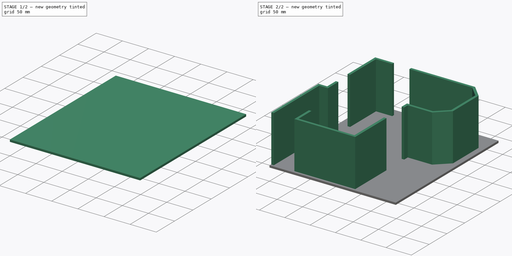
[diagram: build sequence overview — one tinted view per stage of 2, left to right]
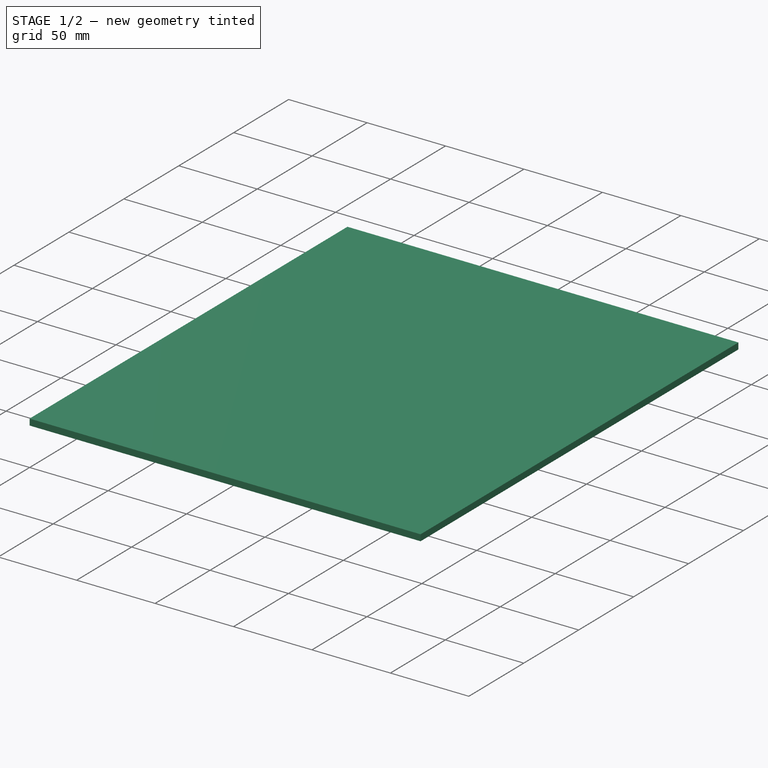
[diagram: stage 1 of 2 — iso view after this stage's code; geometry added in this stage tinted green]
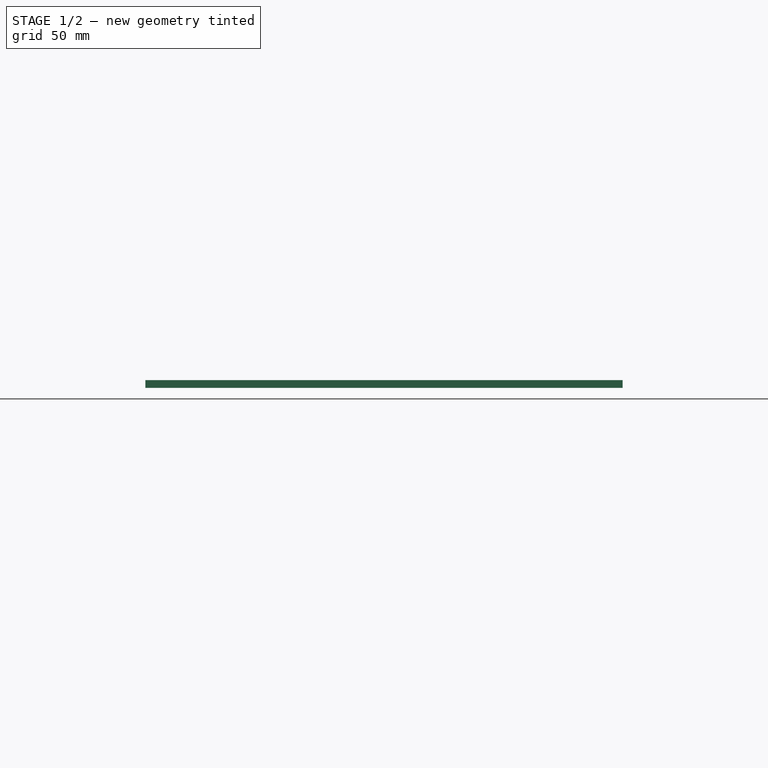
[diagram: stage 1 of 2 — front view after this stage's code; geometry added in this stage tinted green]
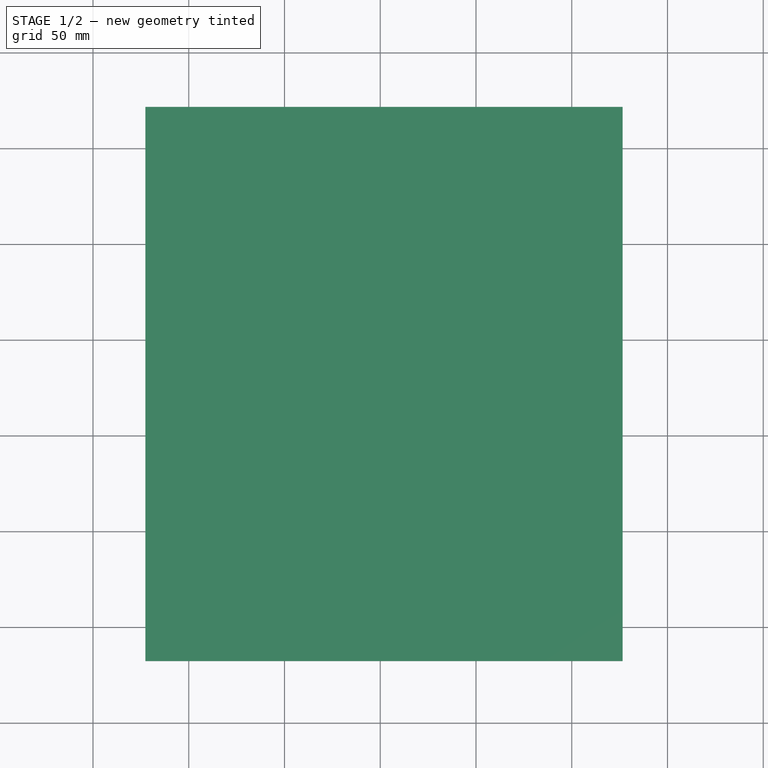
[diagram: stage 1 of 2 — top view after this stage's code; geometry added in this stage tinted green]
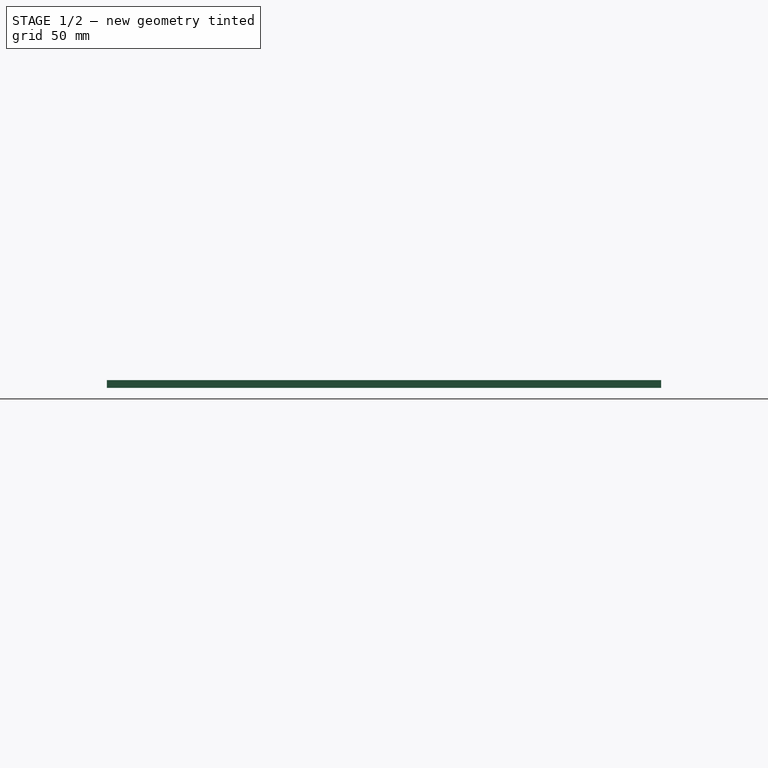
[diagram: stage 1 of 2 — right view after this stage's code; geometry added in this stage tinted green]
FCSTD DOCUMENT  (FreeCAD 0.19R)
Label: NewKitchen1
License: All rights reserved
LicenseURL: http://en.wikipedia.org/wiki/All_rights_reserved
objects: Sketcher::SketchObject×9, PartDesign::Pad×2, PartDesign::Body×1
note: 14 computed .brp shape members not serialized (recipe doc carries the construction recipe); baked Part::Feature solids carry a one-line shape summary decoded from their .brp

FEATURE [Sketcher::SketchObject] Sketch001
  FullyConstrained = false
  MapMode = 5
  Support = -> [XY_Plane]
  sketch-geometry (4):
    g0: LineSegment StartX=-22.6645 StartY=21.6991 StartZ=0 EndX=226.571 EndY=21.6991 EndZ=0
    g1: LineSegment StartX=226.571 StartY=21.6991 StartZ=0 EndX=226.571 EndY=-267.668 EndZ=0
    g2: LineSegment StartX=226.571 StartY=-267.668 StartZ=0 EndX=-22.6645 EndY=-267.668 EndZ=0
    g3: LineSegment StartX=-22.6645 StartY=-267.668 StartZ=0 EndX=-22.6645 EndY=21.6991 EndZ=0
  constraints (8):
    c: Coincident(g0,g1)
    c: Coincident(g1,g2)
    c: Coincident(g2,g3)
    c: Coincident(g3,g0)
    c: Horizontal(g0)
    c: Horizontal(g2)
    c: Vertical(g1)
    c: Vertical(g3)
FEATURE [PartDesign::Pad] Pad  label="base"
  Direction = (1,1,1)
  Length = 4
  Length2 = 100
  Profile = -> Sketch001
  Type = 0
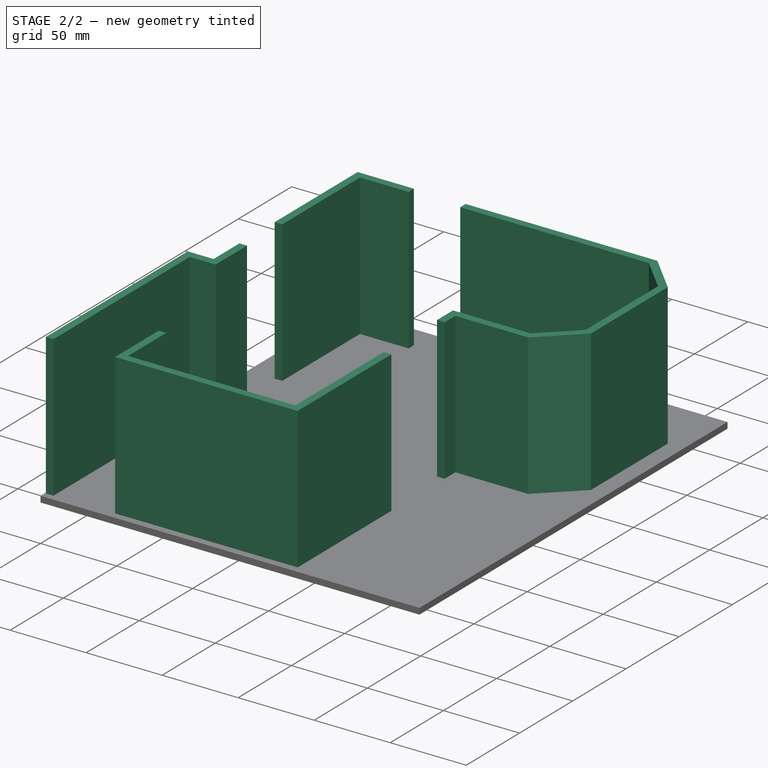
[diagram: stage 2 of 2 — iso view after this stage's code; geometry added in this stage tinted green]
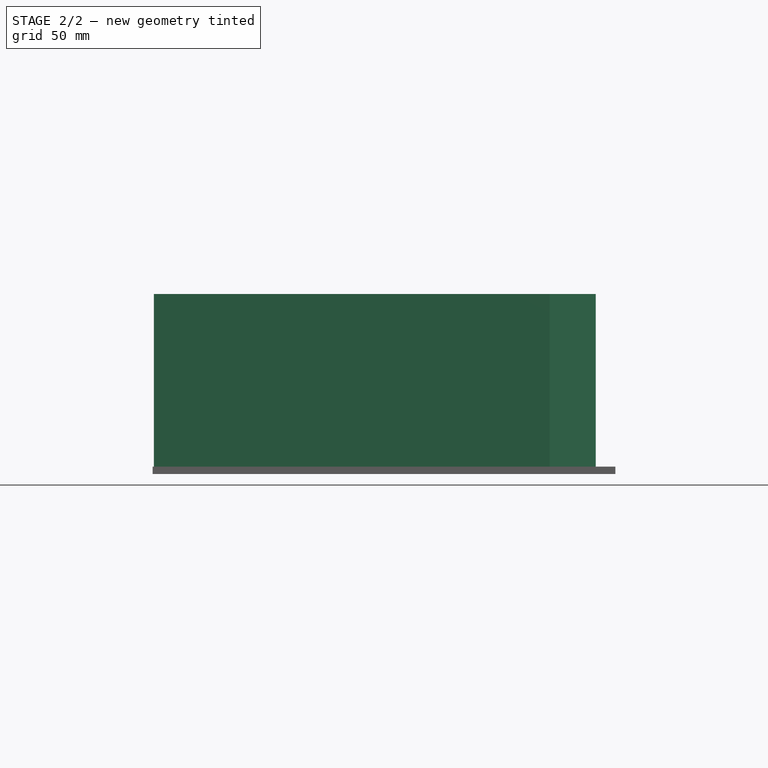
[diagram: stage 2 of 2 — front view after this stage's code; geometry added in this stage tinted green]
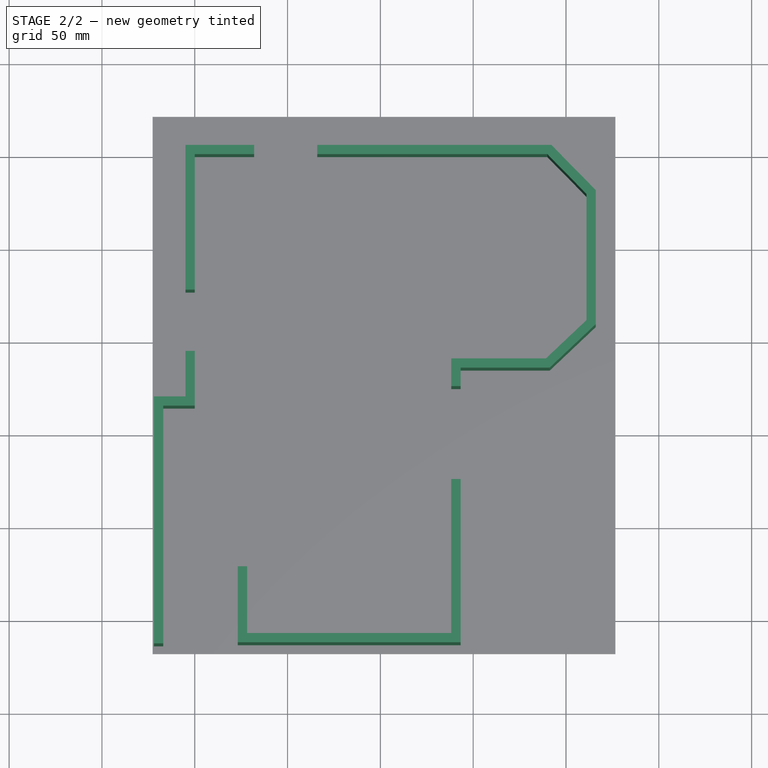
[diagram: stage 2 of 2 — top view after this stage's code; geometry added in this stage tinted green]
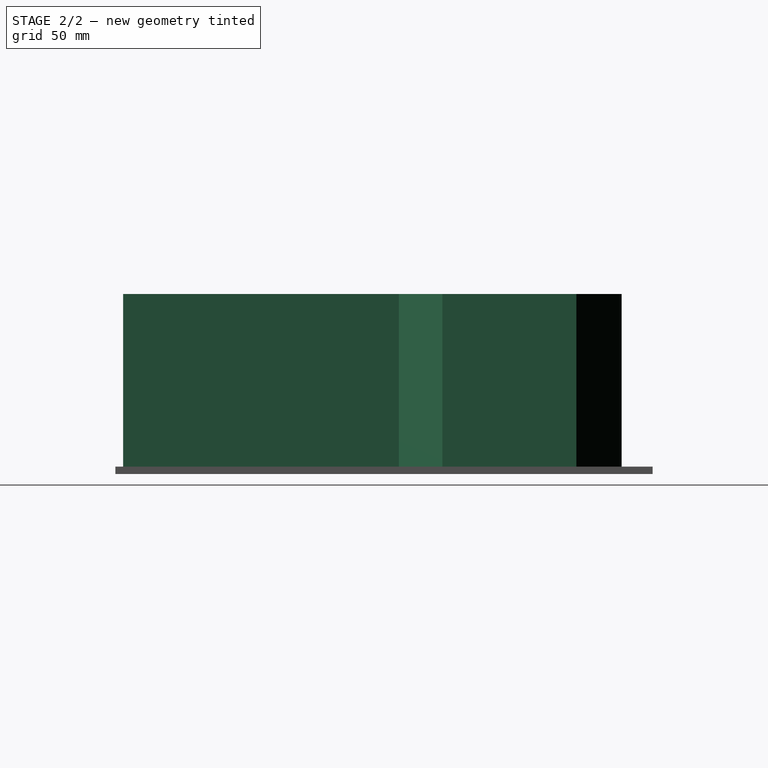
[diagram: stage 2 of 2 — right view after this stage's code; geometry added in this stage tinted green]
FEATURE [Sketcher::SketchObject] Sketch
  FullyConstrained = false
  MapMode = 5
  Placement = pos=(0,0,4) rot=(0,0,1;0rad)
  Support = -> [Pad]
  sketch-geometry (32):
    g0: LineSegment StartX=-17 StartY=-135.5 StartZ=0 EndX=0 EndY=-135.5 EndZ=0
    g1: LineSegment StartX=-0.126742 StartY=-0.000107246 StartZ=0 EndX=32 EndY=0 EndZ=0
    g2: LineSegment StartX=32 StartY=0 StartZ=0 EndX=32 EndY=5.12674 EndZ=0
    g3: LineSegment StartX=32 StartY=5.12674 StartZ=0 EndX=-5.12674 EndY=5.12674 EndZ=0
    g4: LineSegment StartX=-5.12674 StartY=-130.5 StartZ=0 EndX=-22 EndY=-130.5 EndZ=0
    g5: LineSegment StartX=66 StartY=5.0226 StartZ=0 EndX=66 EndY=-0.104143 EndZ=0
    g6: LineSegment StartX=66 StartY=0 StartZ=0 EndX=190 EndY=0 EndZ=0
    g7: LineSegment StartX=189.989 StartY=0.0169644 StartZ=0 EndX=211.022 EndY=-21.401 EndZ=0
    g8: LineSegment StartX=211.023 StartY=-21.4012 StartZ=0 EndX=211.024 EndY=-89.4012 EndZ=0
    g9: LineSegment StartX=211.024 StartY=-89.4012 StartZ=0 EndX=189.213 EndY=-110 EndZ=0
    g10: LineSegment StartX=189.213 StartY=-110 StartZ=0 EndX=138.834 EndY=-110 EndZ=0
    g11: LineSegment StartX=138.834 StartY=-258 StartZ=0 EndX=28.8337 EndY=-258 EndZ=0
    g12: LineSegment StartX=28.8337 StartY=-258 StartZ=0 EndX=28.8337 EndY=-222 EndZ=0
    g13: LineSegment StartX=28.8337 StartY=-222 StartZ=0 EndX=23.707 EndY=-222 EndZ=0
    g14: LineSegment StartX=23.707 StartY=-222 StartZ=0 EndX=23.707 EndY=-263 EndZ=0
    g15: LineSegment StartX=23.707 StartY=-263 StartZ=0 EndX=142.164 EndY=-263 EndZ=0
    g16: LineSegment StartX=142.164 StartY=-115 StartZ=0 EndX=191.201 EndY=-115 EndZ=0
    g17: LineSegment StartX=191.201 StartY=-115 StartZ=0 EndX=216.024 EndY=-91.5564 EndZ=0
    g18: LineSegment StartX=216.024 StartY=-91.5564 StartZ=0 EndX=216.023 EndY=-19.3574 EndZ=0
    g19: LineSegment StartX=216.023 StartY=-19.3574 StartZ=0 EndX=192.081 EndY=5.0226 EndZ=0
    g20: LineSegment StartX=192.081 StartY=5.0226 StartZ=0 EndX=66 EndY=5.0226 EndZ=0
    g21: LineSegment StartX=-5.12674 StartY=-130.5 StartZ=0 EndX=-5.12674 EndY=-106 EndZ=0
    g22: LineSegment StartX=-5.12674 StartY=-106 StartZ=0 EndX=0 EndY=-106 EndZ=0
    g23: LineSegment StartX=0 StartY=-106 StartZ=0 EndX=0 EndY=-135.5 EndZ=0
    g24: LineSegment StartX=-5.12674 StartY=5.12674 StartZ=0 EndX=-5.12674 EndY=-73 EndZ=0
    g25: LineSegment StartX=-5.12674 StartY=-73 StartZ=0 EndX=0 EndY=-73 EndZ=0
    g26: LineSegment StartX=0 StartY=-73 StartZ=0 EndX=-0.126742 EndY=-0.000107246 EndZ=0
    g27: LineSegment StartX=138.834 StartY=-110 StartZ=0 EndX=138.834 EndY=-258 EndZ=0
    g28: LineSegment StartX=142.164 StartY=-115 StartZ=0 EndX=142.164 EndY=-263 EndZ=0
    g29: LineSegment StartX=-17 StartY=-135.5 StartZ=0 EndX=-17 EndY=-263.55 EndZ=0
    g30: LineSegment StartX=-17 StartY=-263.55 StartZ=0 EndX=-22 EndY=-263.55 EndZ=0
    g31: LineSegment StartX=-22 StartY=-263.55 StartZ=0 EndX=-22 EndY=-130.5 EndZ=0
  constraints (77):
    c: PointOnObject(g0,g-2)
    c: Horizontal(g0)
    c: PointOnObject(g1,g-1)
    c: Coincident(g1,g2)
    c: Coincident(g2,g3)
    c: Horizontal(g3)
    c: Horizontal(g6)
    c: Horizontal(g11)
    c: Coincident(g11,g12)
    c: Vertical(g12)
    c: Coincident(g12,g13)
    c: Coincident(g13,g14)
    c: Vertical(g14)
    c: Coincident(g14,g15)
    c: Coincident(g16,g17)
    c: Coincident(g17,g18)
    c: Coincident(g18,g19)
    c: Coincident(g19,g20)
    c: Coincident(g20,g5)
    c: Horizontal(g20)
    c: Equal(g2,g5)
    c: Equal(g5,g13)
    c: Horizontal(g4)
    c: Horizontal(g13)
    c: Coincident(g4,g21)
    c: Vertical(g21)
    c: Coincident(g21,g22)
    c: PointOnObject(g22,g-2)
    c: Coincident(g22,g23)
    c: Coincident(g23,g0)
    c: Coincident(g3,g24)
    c: Vertical(g24)
    c: Coincident(g24,g25)
    c: PointOnObject(g25,g-2)
    c: Coincident(g25,g26)
    c: Coincident(g26,g1)
    c: Horizontal(g22)
    c: Horizontal(g25)
    c: Equal(g25,g22)
    c: Equal(g22,g13)
    c: Distance(g23) = 29.5
    c: Distance(g22,g25) = 33
    c: Distance(g26) = 73
    c: Vertical(g2)
    c: Vertical(g5)
    c: Parallel(g19,g7)
    c: Parallel(g9,g17)
    c: Parallel(g18,g8)
    c: Parallel(g16,g10)
    c: Distance(g16,g10) = 5
    c: Distance(g17,g8) = 5
    c: Distance(g7,g19) = 5
    c: Distance(g16,g9) = 5
    c: Parallel(g15,g11)
    c: Coincident(g27,g11)
    c: Vertical(g27)
    c: Coincident(g15,g28)
    c: Parallel(g28,g27)
    c: Distance(g15,g11) = 5
    c: Distance(g11) = 110
    c: Distance(g12) = 36
    c: Coincident(g0,g29)
    c: Vertical(g29)
    c: Coincident(g29,g30)
    c: Coincident(g30,g31)
    c: Vertical(g31)
    c: Coincident(g4,g31)
    c: Distance(g0,g31) = 5
    c: Distance(g0) = 17
    c: Horizontal(g30)
    c: Distance(g29) = 128.05
    c: Distance(g4,g0) = 5
    c: Distance(g1,g24) = 5
    c: DistanceY(g15) = -263
    c: Coincident(g28,g16)
    c: Coincident(g27,g10)
    c: Distance(g16,g27) = 3.33
FEATURE [Sketcher::SketchObject] Sketch003
  FullyConstrained = false
  MapMode = 5
  Placement = pos=(0,0,4) rot=(0,0,1;0rad)
  sketch-geometry (4):
    g0: LineSegment StartX=0.17585 StartY=-18.4157 StartZ=0 EndX=36.1758 EndY=-18.4157 EndZ=0
    g1: LineSegment StartX=36.1758 StartY=-18.4157 StartZ=0 EndX=36.1758 EndY=-54.4157 EndZ=0
    g2: LineSegment StartX=36.1758 StartY=-54.4157 StartZ=0 EndX=0.17585 EndY=-54.4157 EndZ=0
    g3: LineSegment StartX=0.17585 StartY=-54.4157 StartZ=0 EndX=0.17585 EndY=-18.4157 EndZ=0
  constraints (10):
    c: Coincident(g0,g1)
    c: Coincident(g1,g2)
    c: Coincident(g2,g3)
    c: Coincident(g3,g0)
    c: Horizontal(g0)
    c: Horizontal(g2)
    c: Vertical(g1)
    c: Vertical(g3)
    c: Equal(g0,g3)
    c: Distance(g1) = 36
FEATURE [Sketcher::SketchObject] Sketch010
  FullyConstrained = false
  MapMode = 5
  Placement = pos=(0,0,40) rot=(0,0,1;0rad)
  sketch-geometry (8):
    g0: LineSegment StartX=137.275 StartY=-2.22237 StartZ=0 EndX=167.275 EndY=-2.22237 EndZ=0
    g1: LineSegment StartX=167.275 StartY=-2.22237 StartZ=0 EndX=167.275 EndY=-24.2224 EndZ=0
    g2: LineSegment StartX=167.275 StartY=-24.2224 StartZ=0 EndX=137.275 EndY=-24.2224 EndZ=0
    g3: LineSegment StartX=137.275 StartY=-24.2224 StartZ=0 EndX=137.275 EndY=-2.22237 EndZ=0
    g4: LineSegment StartX=187.92 StartY=-44.1819 StartZ=0 EndX=207.92 EndY=-44.1819 EndZ=0
    g5: LineSegment StartX=207.92 StartY=-44.1819 StartZ=0 EndX=207.92 EndY=-68.1819 EndZ=0
    g6: LineSegment StartX=207.92 StartY=-68.1819 StartZ=0 EndX=187.92 EndY=-68.1819 EndZ=0
    g7: LineSegment StartX=187.92 StartY=-68.1819 StartZ=0 EndX=187.92 EndY=-44.1819 EndZ=0
  constraints (20):
    c: Coincident(g0,g1)
    c: Coincident(g1,g2)
    c: Coincident(g2,g3)
    c: Coincident(g3,g0)
    c: Horizontal(g0)
    c: Horizontal(g2)
    c: Vertical(g1)
    c: Vertical(g3)
    c: Distance(g2) = 30
    c: Distance(g1) = 22
    c: Coincident(g4,g5)
    c: Coincident(g5,g6)
    c: Coincident(g6,g7)
    c: Coincident(g7,g4)
    c: Horizontal(g4)
    c: Horizontal(g6)
    c: Vertical(g5)
    c: Vertical(g7)
    c: Distance(g7) = 24
    c: Distance(g4) = 20
FEATURE [Sketcher::SketchObject] Sketch016
  FullyConstrained = false
  MapMode = 5
  Placement = pos=(0,0,4) rot=(0,0,1;0rad)
  sketch-geometry (4):
    g0: LineSegment StartX=60.2133 StartY=-84 StartZ=0 EndX=98.2133 EndY=-84 EndZ=0
    g1: LineSegment StartX=98.2133 StartY=-84 StartZ=0 EndX=98.2133 EndY=-156 EndZ=0
    g2: LineSegment StartX=98.2133 StartY=-156 StartZ=0 EndX=60.2133 EndY=-156 EndZ=0
    g3: LineSegment StartX=60.2133 StartY=-156 StartZ=0 EndX=60.2133 EndY=-84 EndZ=0
  constraints (10):
    c: Coincident(g0,g1)
    c: Coincident(g1,g2)
    c: Coincident(g2,g3)
    c: Coincident(g3,g0)
    c: Horizontal(g0)
    c: Horizontal(g2)
    c: Vertical(g1)
    c: Vertical(g3)
    c: Distance(g0) = 38
    c: Distance(g1) = 72
FEATURE [Sketcher::SketchObject] Sketch017
  FullyConstrained = false
  MapMode = 5
  Placement = pos=(0,0,40) rot=(0,0,1;0rad)
  sketch-geometry (4):
    g0: LineSegment StartX=138.213 StartY=-125 StartZ=0 EndX=143.213 EndY=-125 EndZ=0
    g1: LineSegment StartX=143.213 StartY=-125 StartZ=0 EndX=143.213 EndY=-139 EndZ=0
    g2: LineSegment StartX=143.213 StartY=-139 StartZ=0 EndX=138.213 EndY=-139 EndZ=0
    g3: LineSegment StartX=138.213 StartY=-139 StartZ=0 EndX=138.213 EndY=-125 EndZ=0
  constraints (6):
    c: Coincident(g0,g1)
    c: Coincident(g1,g2)
    c: Coincident(g2,g3)
    c: Coincident(g3,g0)
    c: Horizontal(g2)
    c: Vertical(g3)
FEATURE [Sketcher::SketchObject] Sketch018
  FullyConstrained = false
  MapMode = 5
  Placement = pos=(0,0,4) rot=(0,0,1;0rad)
  sketch-geometry (8):
    g0: LineSegment StartX=106.163 StartY=-159.186 StartZ=0 EndX=139.251 EndY=-173.369 EndZ=0
    g1: LineSegment StartX=139.251 StartY=-173.369 StartZ=0 EndX=138.463 EndY=-175.208 EndZ=0
    g2: LineSegment StartX=138.463 StartY=-175.208 StartZ=0 EndX=105.375 EndY=-161.025 EndZ=0
    g3: LineSegment StartX=105.375 StartY=-161.025 StartZ=0 EndX=106.163 EndY=-159.186 EndZ=0
    g4: LineSegment StartX=102.413 StartY=-135.441 StartZ=0 EndX=138.215 EndY=-139.215 EndZ=0
    g5: LineSegment StartX=138.215 StartY=-139.215 StartZ=0 EndX=138.005 EndY=-141.204 EndZ=0
    g6: LineSegment StartX=138.005 StartY=-141.204 StartZ=0 EndX=102.203 EndY=-137.43 EndZ=0
    g7: LineSegment StartX=102.203 StartY=-137.43 StartZ=0 EndX=102.413 EndY=-135.441 EndZ=0
  constraints (18):
    c: Coincident(g0,g1)
    c: Coincident(g1,g2)
    c: Coincident(g2,g3)
    c: Coincident(g3,g0)
    c: Distance(g1) = 2
    c: Distance(g0) = 36
    c: Perpendicular(g3,g2)
    c: Perpendicular(g0,g1)
    c: Equal(g2,g0)
    c: Coincident(g4,g5)
    c: Coincident(g5,g6)
    c: Coincident(g6,g7)
    c: Coincident(g7,g4)
    c: Perpendicular(g7,g4)
    c: Parallel(g4,g6)
    c: Equal(g7,g5)
    c: Distance(g4) = 36
    c: Distance(g5) = 2
FEATURE [Sketcher::SketchObject] Sketch019
  FullyConstrained = false
  MapMode = 5
  Placement = pos=(0,-156,0) rot=(1,0,0;1.5708rad)
  sketch-geometry (4):
    g0: LineSegment StartX=58.4491 StartY=37.4514 StartZ=0 EndX=68.2133 EndY=26.5575 EndZ=0
    g1: LineSegment StartX=68.2133 StartY=26.5575 StartZ=0 EndX=68.2133 EndY=4 EndZ=0
    g2: LineSegment StartX=68.2133 StartY=4 StartZ=0 EndX=55.245 EndY=4 EndZ=0
    g3: LineSegment StartX=55.245 StartY=4 StartZ=0 EndX=58.4491 EndY=37.4514 EndZ=0
  constraints (7):
    c: Coincident(g0,g1)
    c: Vertical(g1)
    c: Coincident(g1,g2)
    c: Horizontal(g2)
    c: Coincident(g2,g3)
    c: Coincident(g3,g0)
    c: DistanceY(g1) = 4
FEATURE [PartDesign::Pad] Pad001  label="wall"
  BaseFeature = -> Pad
  Direction = (1,1,1)
  Length = 93
  Length2 = 100
  Profile = -> Sketch
  Type = 0
FEATURE [Sketcher::SketchObject] Sketch002
  ExternalGeometry = -> [Pad001]
  FullyConstrained = false
  MapMode = 5
  Placement = pos=(0,0,4) rot=(0,0,1;0rad)
  Support = -> [Pad001]
  sketch-geometry (21):
    g0: LineSegment StartX=66.2946 StartY=0 StartZ=0 EndX=66.2946 EndY=-26 EndZ=0
    g1: LineSegment StartX=66.2946 StartY=-26 StartZ=0 EndX=179.095 EndY=-26 EndZ=0
    g2: LineSegment StartX=179.095 StartY=-26 StartZ=0 EndX=185.024 EndY=-32.0354 EndZ=0
    g3: LineSegment StartX=185.024 StartY=-32.0354 StartZ=0 EndX=185.024 EndY=-78.1899 EndZ=0
    g4: LineSegment StartX=185.024 StartY=-78.1899 StartZ=0 EndX=178.874 EndY=-84 EndZ=0
    g5: LineSegment StartX=178.874 StartY=-84 StartZ=0 EndX=138.213 EndY=-84 EndZ=0
    g6: LineSegment StartX=138.213 StartY=-84 StartZ=0 EndX=138.213 EndY=-122 EndZ=0
    g7: LineSegment StartX=189.213 StartY=-110 StartZ=0 EndX=211.024 EndY=-89.3945 EndZ=0
    g8: LineSegment StartX=211.024 StartY=-89.3945 StartZ=0 EndX=211.024 EndY=-21.4012 EndZ=0
    g9: LineSegment StartX=211.024 StartY=-21.4012 StartZ=0 EndX=190 EndY=0 EndZ=0
    g10: LineSegment StartX=190 StartY=0 StartZ=0 EndX=66.2946 EndY=0 EndZ=0
    g11: LineSegment StartX=189.213 StartY=-110 StartZ=0 EndX=138.213 EndY=-110 EndZ=0
    g12: LineSegment StartX=138.213 StartY=-110 StartZ=0 EndX=138.213 EndY=-122 EndZ=0
    g13: LineSegment StartX=138.213 StartY=-125 StartZ=0 EndX=143.213 EndY=-125 EndZ=0
    g14: LineSegment StartX=143.213 StartY=-125 StartZ=0 EndX=143.213 EndY=-139 EndZ=0
    g15: LineSegment StartX=143.213 StartY=-139 StartZ=0 EndX=138.213 EndY=-139 EndZ=0
    g16: LineSegment StartX=138.213 StartY=-139 StartZ=0 EndX=138.213 EndY=-125 EndZ=0
    g17: LineSegment StartX=0.904663 StartY=-21.0591 StartZ=0 EndX=29.0148 EndY=-21.0591 EndZ=0
    g18: LineSegment StartX=29.0148 StartY=-21.0591 StartZ=0 EndX=29.0148 EndY=-51.2264 EndZ=0
    g19: LineSegment StartX=29.0148 StartY=-51.2264 StartZ=0 EndX=0.904663 EndY=-51.2264 EndZ=0
    g20: LineSegment StartX=0.904663 StartY=-51.2264 StartZ=0 EndX=0.904663 EndY=-21.0591 EndZ=0
  constraints (54):
    c: PointOnObject(g0,g-1)
    c: Vertical(g0)
    c: Coincident(g0,g1)
    c: Horizontal(g1)
    c: Coincident(g1,g2)
    c: Coincident(g2,g3)
    c: Vertical(g3)
    c: Coincident(g3,g4)
    c: Coincident(g4,g5)
    c: Horizontal(g5)
    c: Coincident(g5,g6)
    c: Vertical(g6)
    c: Coincident(g7,g8)
    c: Vertical(g8)
    c: Coincident(g8,g9)
    c: Coincident(g9,g10)
    c: Coincident(g10,g0)
    c: Equal(g2,g4)
    c: Distance(g2,g8) = 26
    c: DistanceY(g1) = -26
    c: Parallel(g9,g2)
    c: Distance(g2,g9) = 26
    c: Parallel(g4,g7)
    c: Distance(g3,g7) = 26
    c: Coincident(g7,g11)
    c: Coincident(g11,g-4)
    c: Coincident(g11,g12)
    c: Vertical(g12)
    c: Distance(g6) = 38
    c: Coincident(g13,g14)
    c: Coincident(g14,g15)
    c: Coincident(g15,g16)
    c: Coincident(g16,g13)
    c: Horizontal(g13)
    c: Horizontal(g15)
    c: Vertical(g14)
    c: Vertical(g16)
    c: Distance(g15,g-5) = 36
    c: Distance(g13) = 5
    c: Coincident(g13,g-6)
    c: Coincident(g7,g-4)
    c: Distance(g4,g11) = 26
    c: Coincident(g9,g-7)
    c: Coincident(g8,g-7)
    c: Distance(g1) = 112.8
    c: Coincident(g17,g18)
    c: Coincident(g18,g19)
    c: Coincident(g19,g20)
    c: Coincident(g20,g17)
    c: Horizontal(g17)
    c: Horizontal(g19)
    c: Vertical(g18)
    c: Vertical(g20)
    c: PointOnObject(g11,g6)
FEATURE [PartDesign::Body] Body
  Group = -> [Sketch,Sketch001,Pad,Pad001,Sketch002,Sketch003,Sketch010,Sketch016,Sketch017,Sketch018,Sketch019]
  Origin = -> Origin
  Tip = -> Pad001
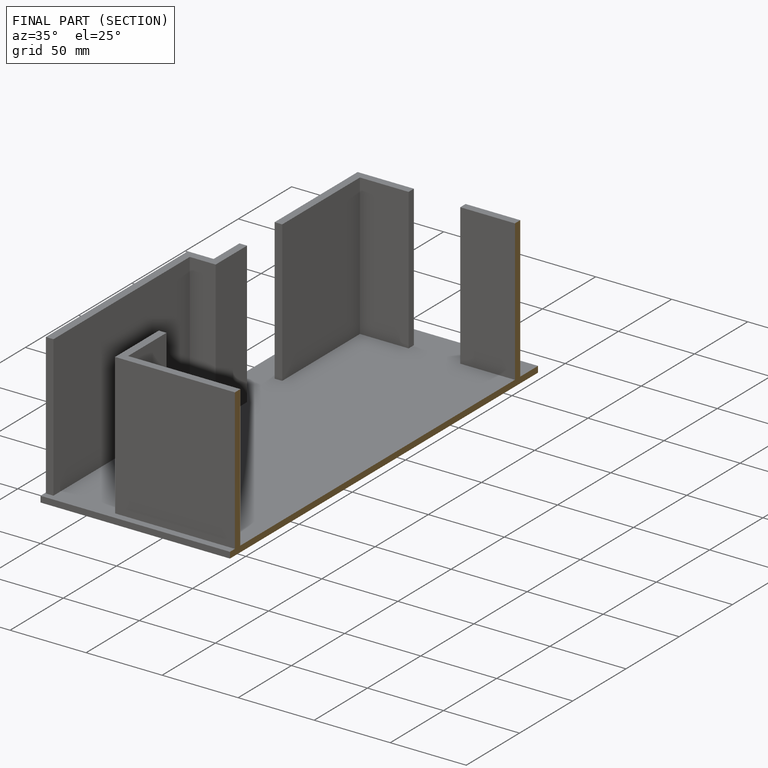
[diagram: finished part — half-section view (interior)]
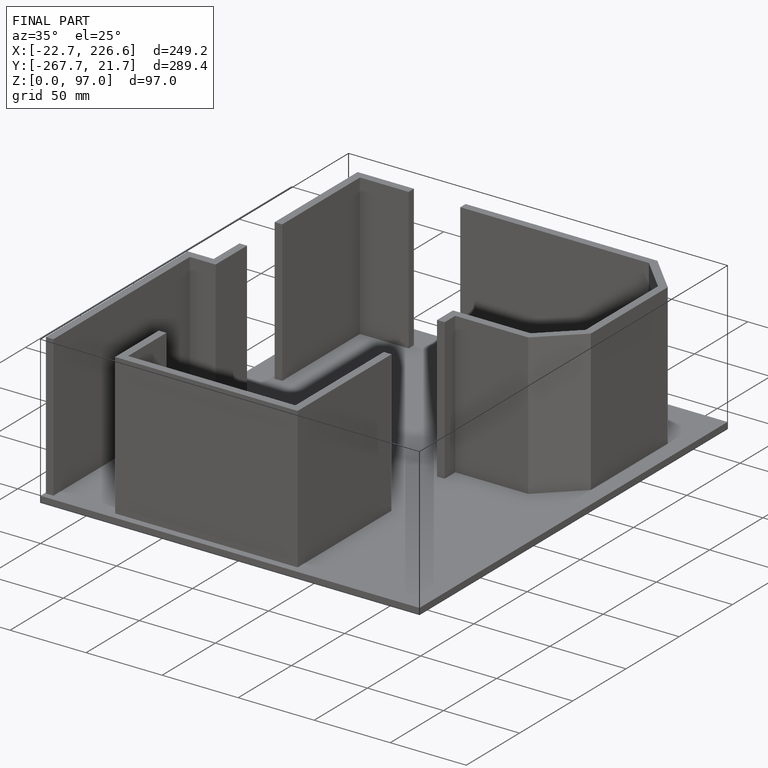
[diagram: finished part — iso view with bounding-box wireframe]
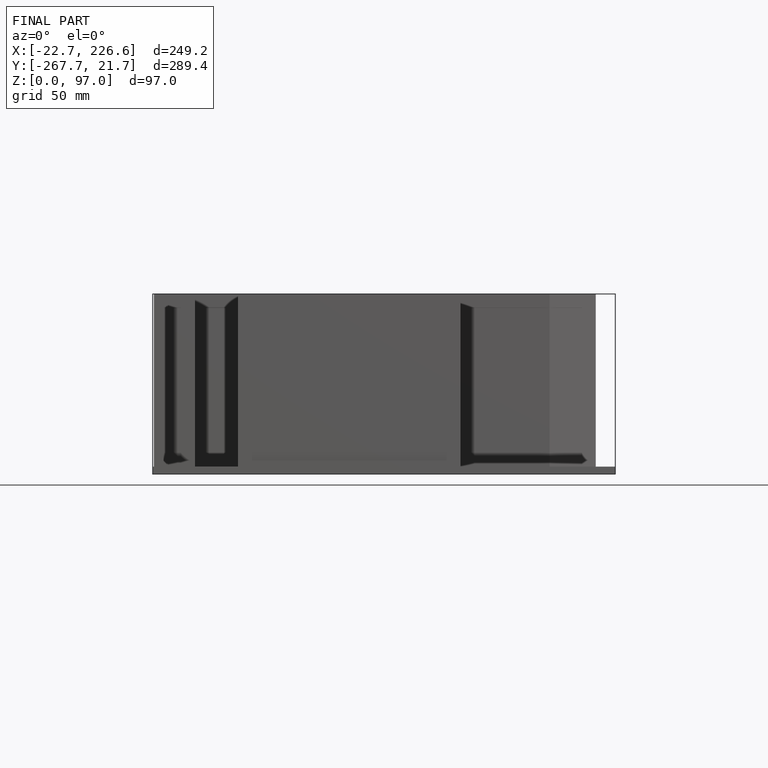
[diagram: finished part — front view with bounding-box wireframe]
